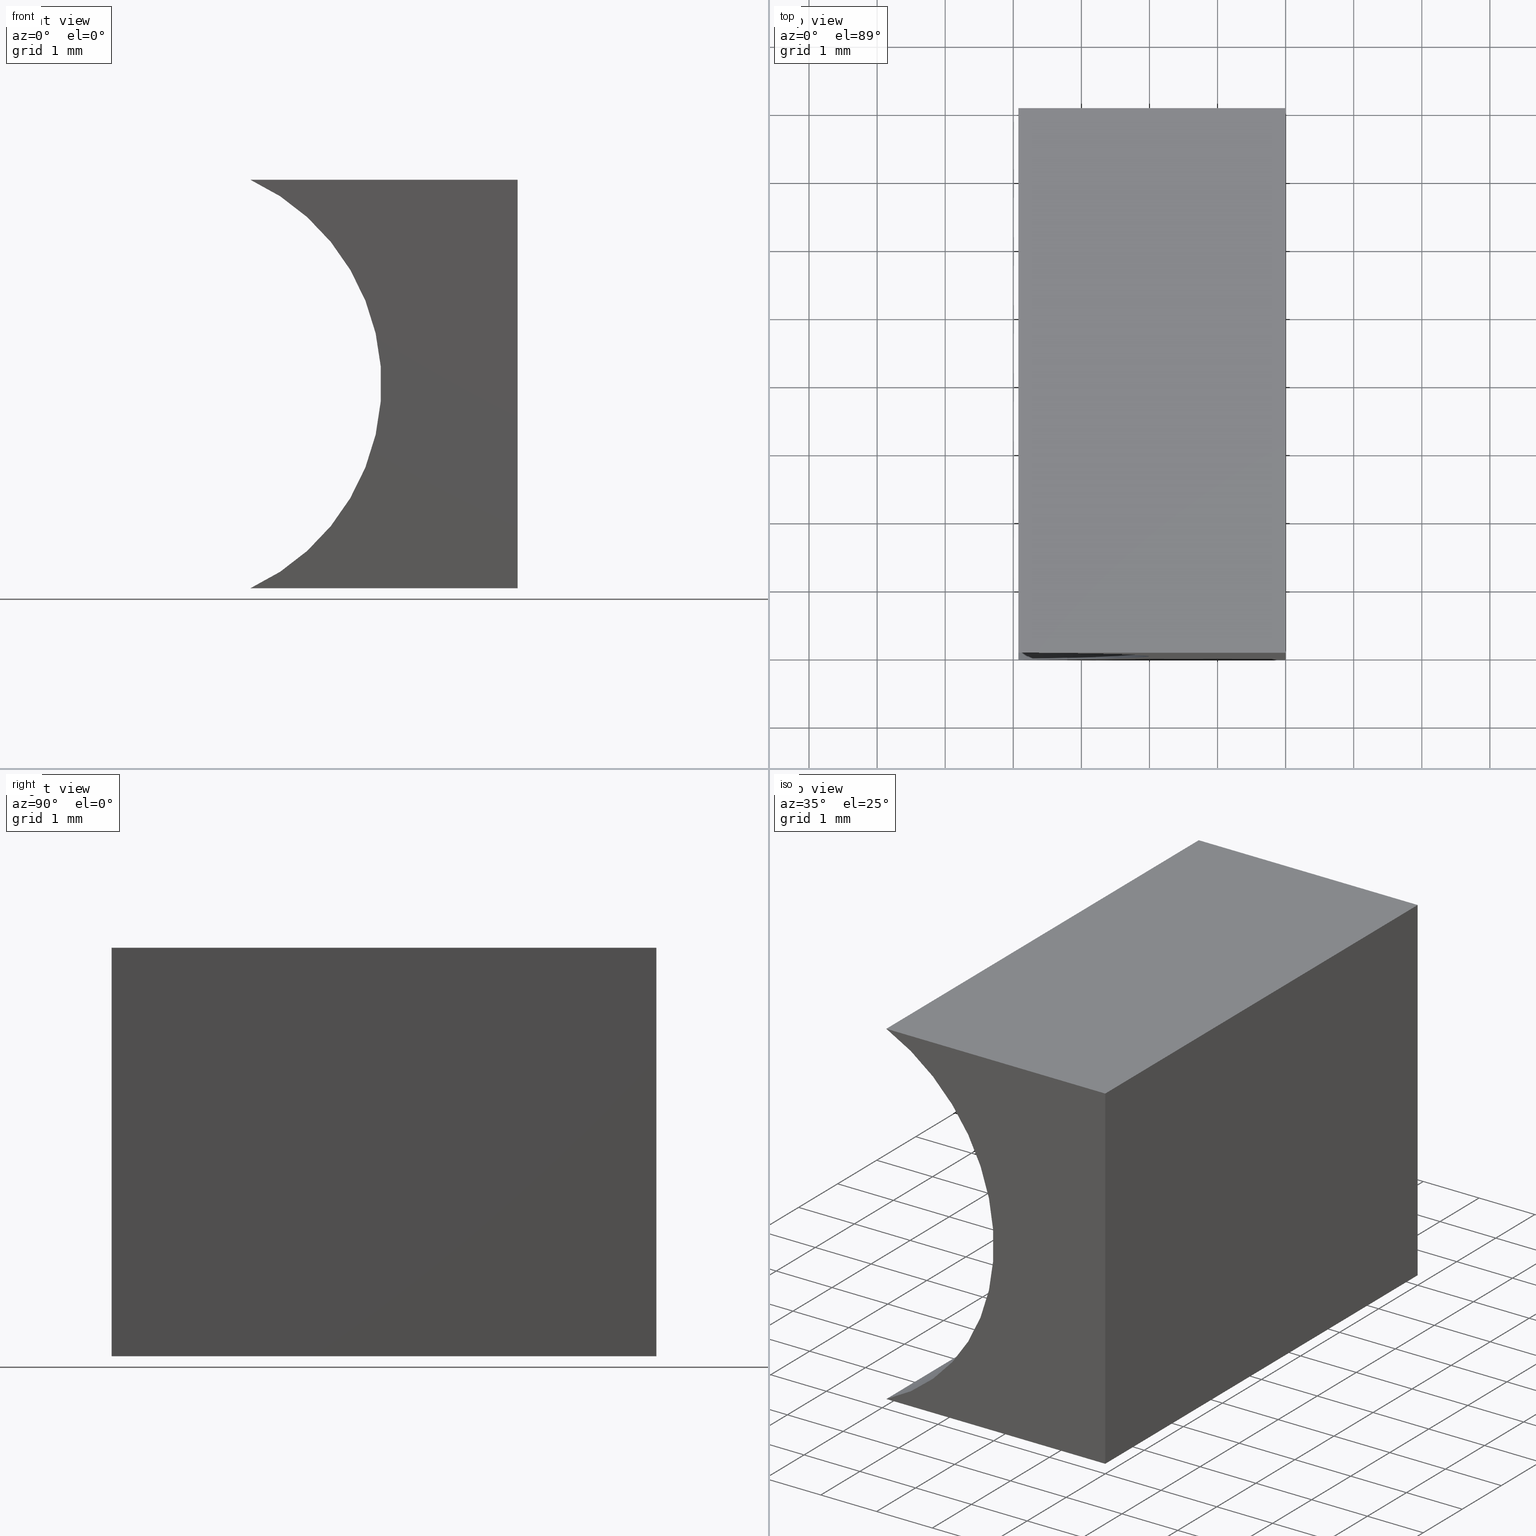
[diagram: canonical four-view strip — front | top / right | iso, engineering-drawing reading convention]
A machine part, canonical four-view strip (front | top / right | iso — engineering-drawing reading convention). The complete STEP part file that produces these views, byte-faithful:
ISO-10303-21;
HEADER;
FILE_DESCRIPTION (( 'STEP AP214' ),
    '1' );
FILE_NAME ('155334.STEP',
    '2019-06-27T03:21:12',
    ( 'user' ),
    ( '΢���й�' ),
    'SwSTEP 2.0',
    'SolidWorks 2016',
    '' );
FILE_SCHEMA (( 'AUTOMOTIVE_DESIGN' ));
ENDSEC;

DATA;
#1 = VERTEX_POINT ( 'NONE', #143 ) ;
#2 = CARTESIAN_POINT ( 'NONE',  ( 0.0000000000000000000, 8.000000000000000000, 0.0000000000000000000 ) ) ;
#3 = ORIENTED_EDGE ( 'NONE', *, *, #96, .T. ) ;
#4 = DIRECTION ( 'NONE',  ( -6.123233995736766000E-017, -0.0000000000000000000, -1.000000000000000000 ) ) ;
#5 = AXIS2_PLACEMENT_3D ( 'NONE', #168, #34, #138 ) ;
#6 = DIRECTION ( 'NONE',  ( 0.0000000000000000000, 0.0000000000000000000, -1.000000000000000000 ) ) ;
#7 = ADVANCED_BREP_SHAPE_REPRESENTATION ( '155334', ( #38, #61 ), #111 ) ;
#8 = SURFACE_STYLE_USAGE ( .BOTH. , #15 ) ;
#9 = LINE ( 'NONE', #2, #69 ) ;
#10 = SURFACE_STYLE_USAGE ( .BOTH. , #167 ) ;
#11 = AXIS2_PLACEMENT_3D ( 'NONE', #91, #50, #159 ) ;
#12 = DIRECTION ( 'NONE',  ( 0.0000000000000000000, 0.0000000000000000000, 1.000000000000000000 ) ) ;
#13 = PRODUCT_DEFINITION_FORMATION_WITH_SPECIFIED_SOURCE ( '�κ�', '', #37, .NOT_KNOWN. ) ;
#14 = VECTOR ( 'NONE', #165, 1000.000000000000000 ) ;
#15 = SURFACE_SIDE_STYLE ('',( #26 ) ) ;
#16 = ORIENTED_EDGE ( 'NONE', *, *, #146, .T. ) ;
#17 = CARTESIAN_POINT ( 'NONE',  ( 3.673940397442059900E-016, 8.000000000000000000, 6.000000000000000000 ) ) ;
#18 =( NAMED_UNIT ( * ) PLANE_ANGLE_UNIT ( ) SI_UNIT ( $, .RADIAN. ) );
#19 =( LENGTH_UNIT ( ) NAMED_UNIT ( * ) SI_UNIT ( .MILLI., .METRE. ) );
#20 = ORIENTED_EDGE ( 'NONE', *, *, #56, .F. ) ;
#21 = ORIENTED_EDGE ( 'NONE', *, *, #187, .T. ) ;
#22 = PLANE ( 'NONE',  #5 ) ;
#23 = PLANE ( 'NONE',  #202 ) ;
#24 = VECTOR ( 'NONE', #179, 1000.000000000000000 ) ;
#25 = ORIENTED_EDGE ( 'NONE', *, *, #126, .T. ) ;
#26 = SURFACE_STYLE_FILL_AREA ( #144 ) ;
#27 = DIRECTION ( 'NONE',  ( 1.000000000000000000, 0.0000000000000000000, 0.0000000000000000000 ) ) ;
#28 = DIRECTION ( 'NONE',  ( -0.0000000000000000000, -1.000000000000000000, -0.0000000000000000000 ) ) ;
#29 =( NAMED_UNIT ( * ) SI_UNIT ( $, .STERADIAN. ) SOLID_ANGLE_UNIT ( ) );
#30 = PRESENTATION_STYLE_ASSIGNMENT (( #10 ) ) ;
#31 = PRESENTATION_LAYER_ASSIGNMENT (  '', '', ( #203 ) ) ;
#32 = CARTESIAN_POINT ( 'NONE',  ( 0.0000000000000000000, 0.0000000000000000000, 0.0000000000000000000 ) ) ;
#33 = LINE ( 'NONE', #45, #154 ) ;
#34 = DIRECTION ( 'NONE',  ( 0.0000000000000000000, 1.000000000000000000, 0.0000000000000000000 ) ) ;
#35 = EDGE_CURVE ( 'NONE', #51, #139, #9, .T. ) ;
#36 = LINE ( 'NONE', #17, #72 ) ;
#37 = PRODUCT ( '155334', '155334', '', ( #148 ) ) ;
#38 = MANIFOLD_SOLID_BREP ( '͹̨-����1', #66 ) ;
#39 = PLANE ( 'NONE',  #157 ) ;
#40 = ORIENTED_EDGE ( 'NONE', *, *, #104, .T. ) ;
#41 = DIRECTION ( 'NONE',  ( 0.0000000000000000000, 0.0000000000000000000, 1.000000000000000000 ) ) ;
#42 = FILL_AREA_STYLE_COLOUR ( '', #62 ) ;
#43 = ORIENTED_EDGE ( 'NONE', *, *, #35, .T. ) ;
#44 = MECHANICAL_DESIGN_GEOMETRIC_PRESENTATION_REPRESENTATION (  '', ( #181 ), #100 ) ;
#45 = CARTESIAN_POINT ( 'NONE',  ( 0.0000000000000000000, 8.000000000000000000, 0.0000000000000000000 ) ) ;
#46 = FACE_OUTER_BOUND ( 'NONE', #53, .T. ) ;
#47 = PRESENTATION_LAYER_ASSIGNMENT (  '', '', ( #181 ) ) ;
#48 = LINE ( 'NONE', #175, #14 ) ;
#49 = CARTESIAN_POINT ( 'NONE',  ( -5.300000000000000700, 8.000000000000000000, 3.000000000000000900 ) ) ;
#50 = DIRECTION ( 'NONE',  ( -0.0000000000000000000, -1.000000000000000000, -0.0000000000000000000 ) ) ;
#51 = VERTEX_POINT ( 'NONE', #55 ) ;
#52 = ADVANCED_FACE ( 'NONE', ( #46 ), #65, .F. ) ;
#53 = EDGE_LOOP ( 'NONE', ( #16, #59, #92, #3 ) ) ;
#54 = VERTEX_POINT ( 'NONE', #129 ) ;
#55 = CARTESIAN_POINT ( 'NONE',  ( 0.0000000000000000000, 8.000000000000000000, 0.0000000000000000000 ) ) ;
#56 = EDGE_CURVE ( 'NONE', #184, #115, #118, .T. ) ;
#57 = APPLICATION_CONTEXT ( 'automotive_design' ) ;
#58 = CYLINDRICAL_SURFACE ( 'NONE', #63, 3.299999999999999800 ) ;
#59 = ORIENTED_EDGE ( 'NONE', *, *, #104, .F. ) ;
#60 = DIRECTION ( 'NONE',  ( -0.0000000000000000000, -1.000000000000000000, -0.0000000000000000000 ) ) ;
#61 = AXIS2_PLACEMENT_3D ( 'NONE', #32, #41, #27 ) ;
#62 = COLOUR_RGB ( '',1.000000000000000000, 1.000000000000000000, 1.000000000000000000 ) ;
#63 = AXIS2_PLACEMENT_3D ( 'NONE', #49, #122, #6 ) ;
#64 = VECTOR ( 'NONE', #4, 1000.000000000000000 ) ;
#65 = PLANE ( 'NONE',  #190 ) ;
#66 = CLOSED_SHELL ( 'NONE', ( #132, #200, #116, #52, #182, #70 ) ) ;
#67 = DIRECTION ( 'NONE',  ( -2.209710861492607300E-016, 0.0000000000000000000, -1.000000000000000000 ) ) ;
#68 = DIRECTION ( 'NONE',  ( 1.000000000000000000, -0.0000000000000000000, -2.209710861492607300E-016 ) ) ;
#69 = VECTOR ( 'NONE', #71, 1000.000000000000000 ) ;
#70 = ADVANCED_FACE ( 'NONE', ( #192 ), #39, .F. ) ;
#71 = DIRECTION ( 'NONE',  ( -1.000000000000000000, 0.0000000000000000000, 1.559969281008474800E-016 ) ) ;
#72 = VECTOR ( 'NONE', #114, 1000.000000000000000 ) ;
#73 = ORIENTED_EDGE ( 'NONE', *, *, #152, .T. ) ;
#74 = UNCERTAINTY_MEASURE_WITH_UNIT (LENGTH_MEASURE( 1.000000000000000100E-005 ), #19, 'distance_accuracy_value', 'NONE');
#75 = VECTOR ( 'NONE', #68, 1000.000000000000000 ) ;
#76 = CARTESIAN_POINT ( 'NONE',  ( 0.0000000000000000000, 8.000000000000000000, 0.0000000000000000000 ) ) ;
#77 = DIRECTION ( 'NONE',  ( 1.000000000000000000, 0.0000000000000000000, -1.559969281008474800E-016 ) ) ;
#78 = MECHANICAL_DESIGN_GEOMETRIC_PRESENTATION_REPRESENTATION (  '', ( #203 ), #156 ) ;
#79 = UNCERTAINTY_MEASURE_WITH_UNIT (LENGTH_MEASURE( 1.000000000000000100E-005 ), #80, 'distance_accuracy_value', 'NONE');
#80 =( LENGTH_UNIT ( ) NAMED_UNIT ( * ) SI_UNIT ( .MILLI., .METRE. ) );
#81 = APPLICATION_CONTEXT ( 'automotive_design' ) ;
#82 = CARTESIAN_POINT ( 'NONE',  ( -5.300000000000000700, 8.000000000000000000, 3.000000000000000900 ) ) ;
#83 = CARTESIAN_POINT ( 'NONE',  ( 0.0000000000000000000, 0.0000000000000000000, 0.0000000000000000000 ) ) ;
#84 = ORIENTED_EDGE ( 'NONE', *, *, #146, .F. ) ;
#85 = COLOUR_RGB ( '',1.000000000000000000, 1.000000000000000000, 1.000000000000000000 ) ;
#86 = DIRECTION ( 'NONE',  ( -1.000000000000000000, 0.0000000000000000000, 6.123233995736766000E-017 ) ) ;
#87 = CARTESIAN_POINT ( 'NONE',  ( -3.925227291513248200, 8.000000000000000000, 8.673617379884035500E-016 ) ) ;
#88 = PRODUCT_DEFINITION_CONTEXT ( 'detailed design', #57, 'design' ) ;
#89 = EDGE_CURVE ( 'NONE', #1, #150, #158, .T. ) ;
#90 = ORIENTED_EDGE ( 'NONE', *, *, #96, .F. ) ;
#91 = CARTESIAN_POINT ( 'NONE',  ( -5.300000000000000700, 0.0000000000000000000, 3.000000000000000900 ) ) ;
#92 = ORIENTED_EDGE ( 'NONE', *, *, #103, .F. ) ;
#93 = CARTESIAN_POINT ( 'NONE',  ( -3.925227291513249100, 0.0000000000000000000, 6.000000000000000900 ) ) ;
#94 = EDGE_LOOP ( 'NONE', ( #106, #90, #147, #73 ) ) ;
#95 = CARTESIAN_POINT ( 'NONE',  ( 3.673940397442059900E-016, 8.000000000000000000, 6.000000000000000000 ) ) ;
#96 = EDGE_CURVE ( 'NONE', #150, #115, #36, .T. ) ;
#97 = CARTESIAN_POINT ( 'NONE',  ( 0.0000000000000000000, 0.0000000000000000000, 0.0000000000000000000 ) ) ;
#98 = PRESENTATION_STYLE_ASSIGNMENT (( #8 ) ) ;
#99 = DIRECTION ( 'NONE',  ( 0.0000000000000000000, 1.000000000000000000, 0.0000000000000000000 ) ) ;
#100 =( GEOMETRIC_REPRESENTATION_CONTEXT ( 3 ) GLOBAL_UNCERTAINTY_ASSIGNED_CONTEXT ( ( #74 ) ) GLOBAL_UNIT_ASSIGNED_CONTEXT ( ( #19, #18, #119 ) ) REPRESENTATION_CONTEXT ( 'NONE', 'WORKASPACE' ) );
#101 = PRODUCT_RELATED_PRODUCT_CATEGORY ( 'part', '', ( #37 ) ) ;
#102 = CARTESIAN_POINT ( 'NONE',  ( -3.925227291513248200, 8.000000000000000000, 8.673617379884035500E-016 ) ) ;
#103 = EDGE_CURVE ( 'NONE', #150, #51, #204, .T. ) ;
#104 = EDGE_CURVE ( 'NONE', #51, #133, #33, .T. ) ;
#105 = FACE_OUTER_BOUND ( 'NONE', #94, .T. ) ;
#106 = ORIENTED_EDGE ( 'NONE', *, *, #56, .T. ) ;
#107 = DIRECTION ( 'NONE',  ( 6.123233995736766000E-017, 0.0000000000000000000, 1.000000000000000000 ) ) ;
#108 = LINE ( 'NONE', #87, #130 ) ;
#109 = CARTESIAN_POINT ( 'NONE',  ( 0.0000000000000000000, 8.000000000000000000, 0.0000000000000000000 ) ) ;
#110 = EDGE_CURVE ( 'NONE', #133, #54, #164, .T. ) ;
#111 =( GEOMETRIC_REPRESENTATION_CONTEXT ( 3 ) GLOBAL_UNCERTAINTY_ASSIGNED_CONTEXT ( ( #79 ) ) GLOBAL_UNIT_ASSIGNED_CONTEXT ( ( #80, #176, #141 ) ) REPRESENTATION_CONTEXT ( 'NONE', 'WORKASPACE' ) );
#112 = SURFACE_STYLE_FILL_AREA ( #185 ) ;
#113 = ORIENTED_EDGE ( 'NONE', *, *, #110, .T. ) ;
#114 = DIRECTION ( 'NONE',  ( -0.0000000000000000000, -1.000000000000000000, -0.0000000000000000000 ) ) ;
#115 = VERTEX_POINT ( 'NONE', #155 ) ;
#116 = ADVANCED_FACE ( 'NONE', ( #105 ), #191, .F. ) ;
#117 =( LENGTH_UNIT ( ) NAMED_UNIT ( * ) SI_UNIT ( .MILLI., .METRE. ) );
#118 = LINE ( 'NONE', #180, #75 ) ;
#119 =( NAMED_UNIT ( * ) SI_UNIT ( $, .STERADIAN. ) SOLID_ANGLE_UNIT ( ) );
#120 = CARTESIAN_POINT ( 'NONE',  ( 3.673940397442059900E-016, 8.000000000000000000, 6.000000000000000000 ) ) ;
#121 = DIRECTION ( 'NONE',  ( -1.000000000000000000, 0.0000000000000000000, 2.209710861492607300E-016 ) ) ;
#122 = DIRECTION ( 'NONE',  ( -0.0000000000000000000, -1.000000000000000000, -0.0000000000000000000 ) ) ;
#123 = PRODUCT_DEFINITION_SHAPE ( 'NONE', 'NONE',  #172 ) ;
#124 = DIRECTION ( 'NONE',  ( 1.000000000000000000, -0.0000000000000000000, -2.209710861492607300E-016 ) ) ;
#125 = ORIENTED_EDGE ( 'NONE', *, *, #152, .F. ) ;
#126 = EDGE_CURVE ( 'NONE', #54, #184, #183, .T. ) ;
#127 = CARTESIAN_POINT ( 'NONE',  ( 3.673940397442059900E-016, 8.000000000000000000, 6.000000000000000000 ) ) ;
#128 = ORIENTED_EDGE ( 'NONE', *, *, #103, .T. ) ;
#129 = CARTESIAN_POINT ( 'NONE',  ( -3.925227291513248200, 0.0000000000000000000, 8.673617379884035500E-016 ) ) ;
#130 = VECTOR ( 'NONE', #60, 1000.000000000000000 ) ;
#131 = ORIENTED_EDGE ( 'NONE', *, *, #89, .T. ) ;
#132 = ADVANCED_FACE ( 'NONE', ( #149 ), #23, .F. ) ;
#133 = VERTEX_POINT ( 'NONE', #197 ) ;
#134 = EDGE_LOOP ( 'NONE', ( #162, #84, #20, #193 ) ) ;
#135 = APPLICATION_PROTOCOL_DEFINITION ( 'draft international standard', 'automotive_design', 1998, #57 ) ;
#136 = EDGE_LOOP ( 'NONE', ( #25, #125, #177, #21 ) ) ;
#137 = EDGE_LOOP ( 'NONE', ( #113, #188, #160, #40 ) ) ;
#138 = DIRECTION ( 'NONE',  ( 0.0000000000000000000, -0.0000000000000000000, 1.000000000000000000 ) ) ;
#139 = VERTEX_POINT ( 'NONE', #102 ) ;
#140 = AXIS2_PLACEMENT_3D ( 'NONE', #120, #67, #121 ) ;
#141 =( NAMED_UNIT ( * ) SI_UNIT ( $, .STERADIAN. ) SOLID_ANGLE_UNIT ( ) );
#142 = SHAPE_DEFINITION_REPRESENTATION ( #123, #7 ) ;
#143 = CARTESIAN_POINT ( 'NONE',  ( -3.925227291513249100, 8.000000000000000000, 6.000000000000000900 ) ) ;
#144 = FILL_AREA_STYLE ('',( #42 ) ) ;
#145 = EDGE_CURVE ( 'NONE', #139, #1, #174, .T. ) ;
#146 = EDGE_CURVE ( 'NONE', #115, #133, #189, .T. ) ;
#147 = ORIENTED_EDGE ( 'NONE', *, *, #89, .F. ) ;
#148 = PRODUCT_CONTEXT ( 'NONE', #81, 'mechanical' ) ;
#149 = FACE_OUTER_BOUND ( 'NONE', #137, .T. ) ;
#150 = VERTEX_POINT ( 'NONE', #95 ) ;
#151 = CARTESIAN_POINT ( 'NONE',  ( 0.0000000000000000000, 8.000000000000000000, 0.0000000000000000000 ) ) ;
#152 = EDGE_CURVE ( 'NONE', #1, #184, #48, .T. ) ;
#153 = DIRECTION ( 'NONE',  ( 0.0000000000000000000, -0.0000000000000000000, 1.000000000000000000 ) ) ;
#154 = VECTOR ( 'NONE', #178, 1000.000000000000000 ) ;
#155 = CARTESIAN_POINT ( 'NONE',  ( 3.673940397442059900E-016, 0.0000000000000000000, 6.000000000000000000 ) ) ;
#156 =( GEOMETRIC_REPRESENTATION_CONTEXT ( 3 ) GLOBAL_UNCERTAINTY_ASSIGNED_CONTEXT ( ( #171 ) ) GLOBAL_UNIT_ASSIGNED_CONTEXT ( ( #117, #201, #29 ) ) REPRESENTATION_CONTEXT ( 'NONE', 'WORKASPACE' ) );
#157 = AXIS2_PLACEMENT_3D ( 'NONE', #198, #99, #153 ) ;
#158 = LINE ( 'NONE', #127, #199 ) ;
#159 = DIRECTION ( 'NONE',  ( 0.0000000000000000000, 0.0000000000000000000, 1.000000000000000000 ) ) ;
#160 = ORIENTED_EDGE ( 'NONE', *, *, #35, .F. ) ;
#161 = APPLICATION_PROTOCOL_DEFINITION ( 'draft international standard', 'automotive_design', 1998, #81 ) ;
#162 = ORIENTED_EDGE ( 'NONE', *, *, #110, .F. ) ;
#163 = DIRECTION ( 'NONE',  ( -1.000000000000000000, 0.0000000000000000000, 1.559969281008474800E-016 ) ) ;
#164 = LINE ( 'NONE', #83, #195 ) ;
#165 = DIRECTION ( 'NONE',  ( -0.0000000000000000000, -1.000000000000000000, -0.0000000000000000000 ) ) ;
#166 = AXIS2_PLACEMENT_3D ( 'NONE', #82, #28, #12 ) ;
#167 = SURFACE_SIDE_STYLE ('',( #112 ) ) ;
#168 = CARTESIAN_POINT ( 'NONE',  ( -5.300000000000000700, 8.000000000000000000, 3.000000000000000900 ) ) ;
#169 = FACE_OUTER_BOUND ( 'NONE', #173, .T. ) ;
#170 = FILL_AREA_STYLE_COLOUR ( '', #85 ) ;
#171 = UNCERTAINTY_MEASURE_WITH_UNIT (LENGTH_MEASURE( 1.000000000000000100E-005 ), #117, 'distance_accuracy_value', 'NONE');
#172 = PRODUCT_DEFINITION ( 'δ֪', '', #13, #88 ) ;
#173 = EDGE_LOOP ( 'NONE', ( #43, #196, #131, #128 ) ) ;
#174 = CIRCLE ( 'NONE', #166, 3.299999999999999800 ) ;
#175 = CARTESIAN_POINT ( 'NONE',  ( -3.925227291513249100, 8.000000000000000000, 6.000000000000000900 ) ) ;
#176 =( NAMED_UNIT ( * ) PLANE_ANGLE_UNIT ( ) SI_UNIT ( $, .RADIAN. ) );
#177 = ORIENTED_EDGE ( 'NONE', *, *, #145, .F. ) ;
#178 = DIRECTION ( 'NONE',  ( -0.0000000000000000000, -1.000000000000000000, -0.0000000000000000000 ) ) ;
#179 = DIRECTION ( 'NONE',  ( -6.123233995736766000E-017, -0.0000000000000000000, -1.000000000000000000 ) ) ;
#180 = CARTESIAN_POINT ( 'NONE',  ( 3.673940397442059900E-016, 0.0000000000000000000, 6.000000000000000000 ) ) ;
#181 = STYLED_ITEM ( 'NONE', ( #30 ), #38 ) ;
#182 = ADVANCED_FACE ( 'NONE', ( #169 ), #22, .T. ) ;
#183 = CIRCLE ( 'NONE', #11, 3.299999999999999800 ) ;
#184 = VERTEX_POINT ( 'NONE', #93 ) ;
#185 = FILL_AREA_STYLE ('',( #170 ) ) ;
#186 = FACE_OUTER_BOUND ( 'NONE', #136, .T. ) ;
#187 = EDGE_CURVE ( 'NONE', #139, #54, #108, .T. ) ;
#188 = ORIENTED_EDGE ( 'NONE', *, *, #187, .F. ) ;
#189 = LINE ( 'NONE', #97, #64 ) ;
#190 = AXIS2_PLACEMENT_3D ( 'NONE', #151, #86, #107 ) ;
#191 = PLANE ( 'NONE',  #140 ) ;
#192 = FACE_OUTER_BOUND ( 'NONE', #134, .T. ) ;
#193 = ORIENTED_EDGE ( 'NONE', *, *, #126, .F. ) ;
#194 = DIRECTION ( 'NONE',  ( 1.559969281008474800E-016, -0.0000000000000000000, 1.000000000000000000 ) ) ;
#195 = VECTOR ( 'NONE', #163, 1000.000000000000000 ) ;
#196 = ORIENTED_EDGE ( 'NONE', *, *, #145, .T. ) ;
#197 = CARTESIAN_POINT ( 'NONE',  ( 0.0000000000000000000, 0.0000000000000000000, 0.0000000000000000000 ) ) ;
#198 = CARTESIAN_POINT ( 'NONE',  ( -5.300000000000000700, 0.0000000000000000000, 3.000000000000000900 ) ) ;
#199 = VECTOR ( 'NONE', #124, 1000.000000000000000 ) ;
#200 = ADVANCED_FACE ( 'NONE', ( #186 ), #58, .F. ) ;
#201 =( NAMED_UNIT ( * ) PLANE_ANGLE_UNIT ( ) SI_UNIT ( $, .RADIAN. ) );
#202 = AXIS2_PLACEMENT_3D ( 'NONE', #76, #194, #77 ) ;
#203 = STYLED_ITEM ( 'NONE', ( #98 ), #7 ) ;
#204 = LINE ( 'NONE', #109, #24 ) ;
ENDSEC;
END-ISO-10303-21;
